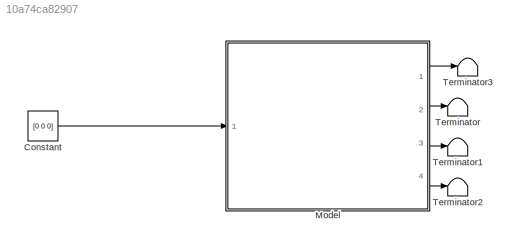
MODEL slx_10a74ca82907
KIND model
CONFIG AbsTol = auto
CONFIG EnableMultiTasking = off
CONFIG FixedStep = auto
CONFIG MaxStep = auto
CONFIG MinStep = auto
CONFIG RelTol = 1e-3
CONFIG SampleTimeConstraint = Unconstrained
CONFIG Solver = VariableStepAuto
CONFIG SolverName = VariableStepAuto
CONFIG StartTime = 0.0
CONFIG StopTime = 10.0
BLOCK [Constant] Constant
  Value = [0 0 0]
BLOCK [ModelReference] Model
  ModelNameDialog = PendulumRCSPlant
  ModelReferenceVersion = 1.182
  Ports = [1, 4]
BLOCK [Terminator] Terminator
BLOCK [Terminator] Terminator1
BLOCK [Terminator] Terminator2
BLOCK [Terminator] Terminator3
LINE Constant:1 -> Model:1
LINE Model:1 -> Terminator3:1
LINE Model:2 -> Terminator:1
LINE Model:3 -> Terminator1:1
LINE Model:4 -> Terminator2:1
